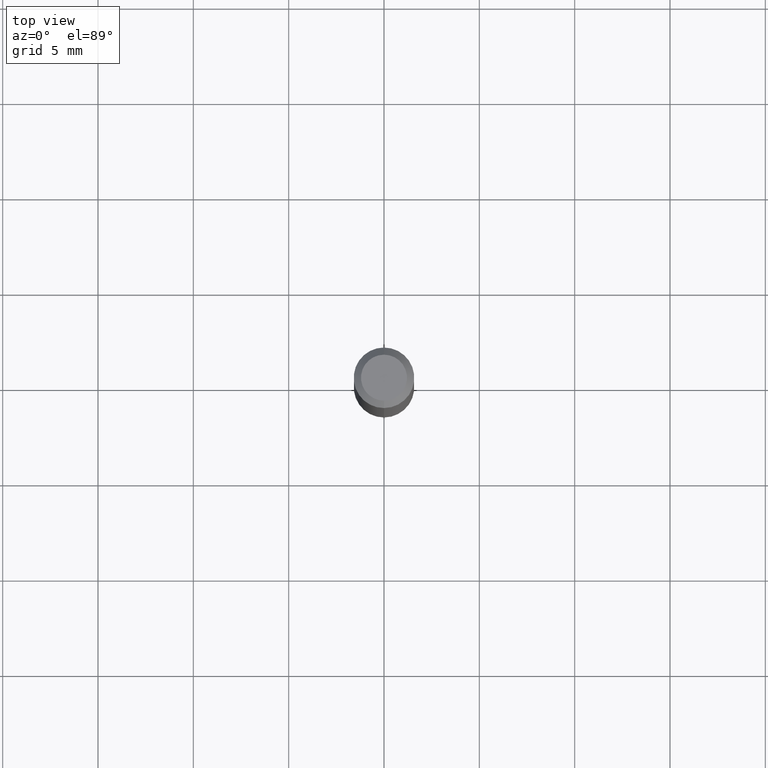
[diagram: clean part render]
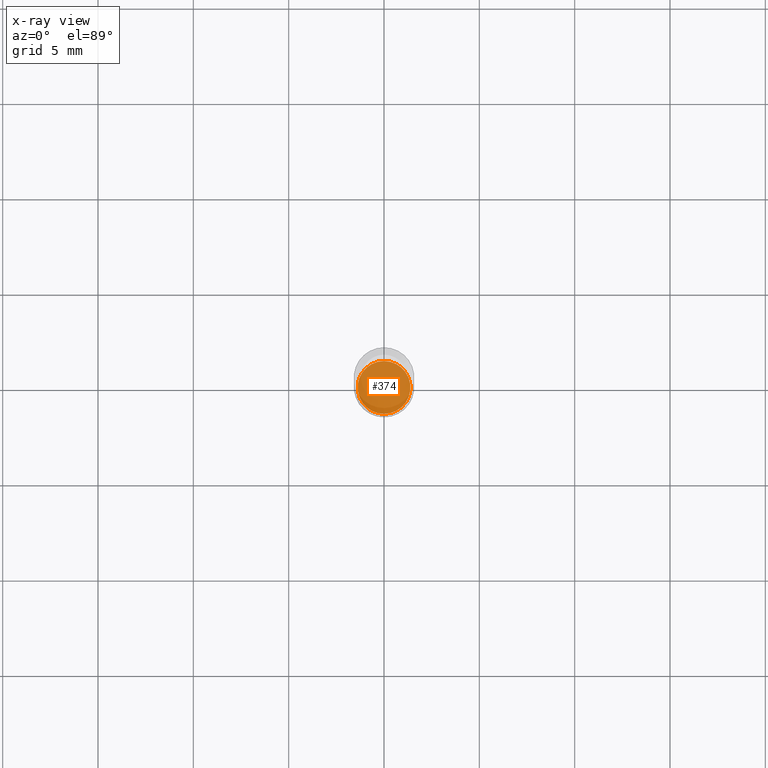
[diagram: x-ray — body ghosted, one internal face saturated and labeled with its STEP entity id]
A machine part, top view, then the same camera in x-ray: the body is ghosted and one INTERNAL B-rep face — a face not visible from any outside direction — is saturated and labeled: STEP entity #374.
In plain terms, the highlighted planar face has unit normal (-0, 0, 1).
Its self-contained STEP definition (entity closure, byte-faithful):
#11 = DIRECTION ( 'NONE',  ( -6.982962677686265922E-15, -1.000000000000000000, 3.491324488349903437E-15 ) ) ;
#34 = DIRECTION ( 'NONE',  ( -6.982962677686266711E-15, -1.000000000000000000, 2.506282562994736586E-15 ) ) ;
#39 = PLANE ( 'NONE',  #431 ) ;
#62 = CARTESIAN_POINT ( 'NONE',  ( -3.805714659338729375E-16, -0.05450000000000408684, -1.169999999999999929 ) ) ;
#73 = DIRECTION ( 'NONE',  ( -2.445578334299164808E-29, 3.491324488349903437E-15, 1.000000000000000000 ) ) ;
#113 = CARTESIAN_POINT ( 'NONE',  ( 2.861326651130023882E-29, -4.084849651369386966E-15, -1.170000000000000151 ) ) ;
#121 = FACE_OUTER_BOUND ( 'NONE', #409, .T. ) ;
#280 = CIRCLE ( 'NONE', #351, 0.05450000000000000677 ) ;
#284 = CARTESIAN_POINT ( 'NONE',  ( 3.890221478286836949E-16, 0.05449999999999592670, -1.170000000000000151 ) ) ;
#287 = CARTESIAN_POINT ( 'NONE',  ( 2.861326651130023882E-29, -4.084849651369386966E-15, -1.170000000000000151 ) ) ;
#292 = VERTEX_POINT ( 'NONE', #62 ) ;
#317 = CARTESIAN_POINT ( 'NONE',  ( 2.861326651130023882E-29, -4.084849651369386966E-15, -1.170000000000000151 ) ) ;
#322 = AXIS2_PLACEMENT_3D ( 'NONE', #113, #473, #449 ) ;
#351 = AXIS2_PLACEMENT_3D ( 'NONE', #317, #405, #34 ) ;
#360 = EDGE_CURVE ( 'NONE', #292, #445, #280, .T. ) ;
#374 = ADVANCED_FACE ( 'NONE', ( #121 ), #39, .F. ) ;
#401 = ORIENTED_EDGE ( 'NONE', *, *, #360, .F. ) ;
#405 = DIRECTION ( 'NONE',  ( -2.445578334299165369E-29, 3.491324488349903437E-15, 1.000000000000000000 ) ) ;
#409 = EDGE_LOOP ( 'NONE', ( #401, #508 ) ) ;
#425 = EDGE_CURVE ( 'NONE', #445, #292, #503, .T. ) ;
#431 = AXIS2_PLACEMENT_3D ( 'NONE', #287, #73, #11 ) ;
#445 = VERTEX_POINT ( 'NONE', #284 ) ;
#449 = DIRECTION ( 'NONE',  ( -6.982962677686266711E-15, -1.000000000000000000, 2.506282562994736586E-15 ) ) ;
#473 = DIRECTION ( 'NONE',  ( -2.445578334299165369E-29, 3.491324488349903437E-15, 1.000000000000000000 ) ) ;
#503 = CIRCLE ( 'NONE', #322, 0.05450000000000000677 ) ;
#508 = ORIENTED_EDGE ( 'NONE', *, *, #425, .F. ) ;